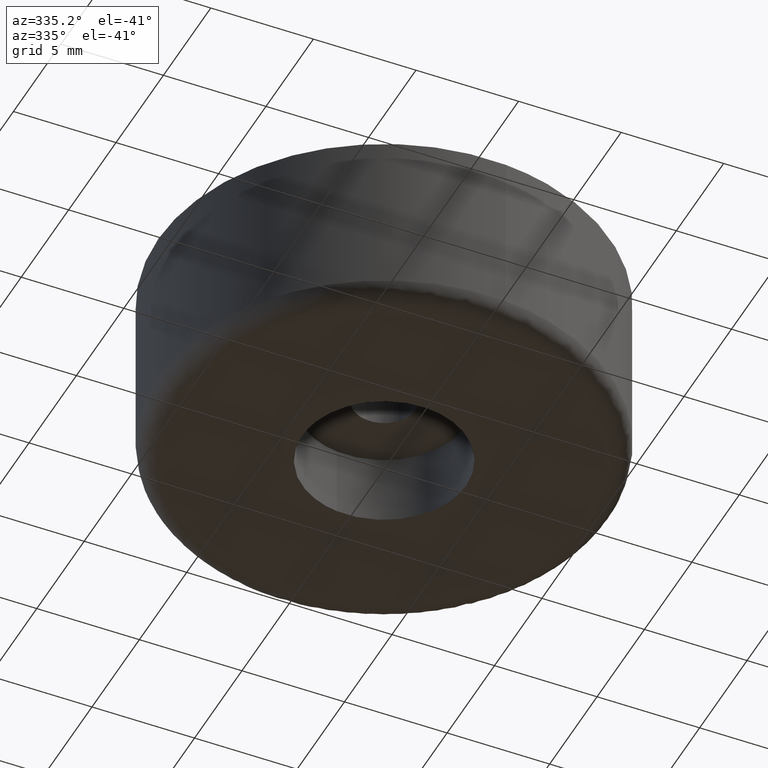
[diagram: clean part render]
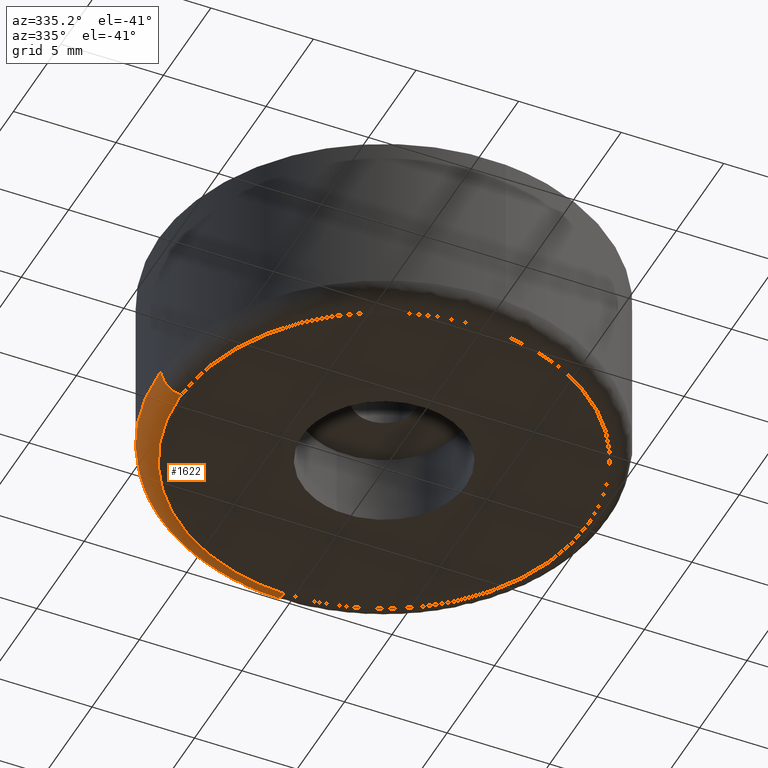
[diagram: same view with one face highlighted and labeled with its STEP entity id]
A machine part, auxiliary view. The second image highlights one B-rep face of the part: STEP entity #1622.
In plain terms, the highlighted face is a freeform B-spline surface patch.
Its self-contained STEP definition (entity closure, byte-faithful):
#793=CARTESIAN_POINT('',(-0.276431049877462,10.996526082116279,0.999999999897399));
#794=VERTEX_POINT('',#793);
#810=CARTESIAN_POINT('',(-11.0,0.0,1.0));
#811=VERTEX_POINT('',#810);
#812=CARTESIAN_POINT('',(-11.0,0.0,1.0));
#813=CARTESIAN_POINT('',(-11.0,10.726956637985680,1.0));
#814=CARTESIAN_POINT('',(-0.276431049877462,10.996526082116279,0.999999999897399));
#822=(BOUNDED_CURVE()B_SPLINE_CURVE(2,(#812,#813,#814),.UNSPECIFIED.,.F.,.U.)B_SPLINE_CURVE_WITH_KNOTS((3,3),(0.0,0.245579891769784),.UNSPECIFIED.)CURVE()GEOMETRIC_REPRESENTATION_ITEM()RATIONAL_B_SPLINE_CURVE((1.0,0.712285260094755,0.989826157681522))REPRESENTATION_ITEM(''));
#823=EDGE_CURVE('',#811,#794,#822,.T.);
#825=CARTESIAN_POINT('',(-10.996526082116279,-0.276431049877210,0.999999999897420));
#826=VERTEX_POINT('',#825);
#827=CARTESIAN_POINT('',(-10.996526082116281,-0.276431049877210,0.999999999897420));
#828=CARTESIAN_POINT('',(-11.0,-0.138237353357674,1.0));
#829=CARTESIAN_POINT('',(-11.0,0.0,1.0));
#837=(BOUNDED_CURVE()B_SPLINE_CURVE(2,(#827,#828,#829),.UNSPECIFIED.,.F.,.U.)B_SPLINE_CURVE_WITH_KNOTS((3,3),(0.995579891769792,1.0),.UNSPECIFIED.)CURVE()GEOMETRIC_REPRESENTATION_ITEM()RATIONAL_B_SPLINE_CURVE((0.989826157681540,0.994821521091802,1.0))REPRESENTATION_ITEM(''));
#838=EDGE_CURVE('',#826,#811,#837,.T.);
#1502=CARTESIAN_POINT('',(-0.251300954478001,9.996841893394862,1.718108E-016));
#1503=VERTEX_POINT('',#1502);
#1521=CARTESIAN_POINT('',(-0.276431049877462,10.996526082116279,0.999999999897399));
#1522=CARTESIAN_POINT('',(-0.276431049871556,10.996526081911156,1.125614E-009));
#1523=CARTESIAN_POINT('',(-0.251300954478001,9.996841893394862,1.718108E-016));
#1531=(BOUNDED_CURVE()B_SPLINE_CURVE(2,(#1521,#1522,#1523),.UNSPECIFIED.,.F.,.U.)B_SPLINE_CURVE_WITH_KNOTS((3,3),(-1.723441281773494,-0.263586880092799),.UNSPECIFIED.)CURVE()GEOMETRIC_REPRESENTATION_ITEM()RATIONAL_B_SPLINE_CURVE((0.883897567064202,0.626638727480732,0.888510408644601))REPRESENTATION_ITEM(''));
#1532=EDGE_CURVE('',#794,#1503,#1531,.T.);
#1538=CARTESIAN_POINT('',(-9.996841893421046,-0.251300954480380,1.874299E-016));
#1539=VERTEX_POINT('',#1538);
#1540=CARTESIAN_POINT('',(-10.996526082116283,-0.276431049877210,0.999999999897420));
#1541=CARTESIAN_POINT('',(-10.996526081911201,-0.276431049871555,1.178090E-009));
#1542=CARTESIAN_POINT('',(-9.996841893421046,-0.251300954480380,1.874299E-016));
#1550=(BOUNDED_CURVE()B_SPLINE_CURVE(2,(#1540,#1541,#1542),.UNSPECIFIED.,.F.,.U.)B_SPLINE_CURVE_WITH_KNOTS((3,3),(-1.723441281773539,-0.263586880147109),.UNSPECIFIED.)CURVE()GEOMETRIC_REPRESENTATION_ITEM()RATIONAL_B_SPLINE_CURVE((0.883897567064218,0.626638727490295,0.888510408625117))REPRESENTATION_ITEM(''));
#1551=EDGE_CURVE('',#826,#1539,#1550,.T.);
#1571=CARTESIAN_POINT('',(-10.994093156753253,-0.276369890915476,1.069724206937739));
#1572=CARTESIAN_POINT('',(-11.270463047668732,10.717723265837783,1.069724206937739));
#1573=CARTESIAN_POINT('',(-0.276369890915477,10.994093156753253,1.069724206937739));
#1574=CARTESIAN_POINT('',(-11.074240832848719,-0.278384645946547,-0.077336226805050));
#1575=CARTESIAN_POINT('',(-11.352625478795270,10.795856186902176,-0.077336226805050));
#1576=CARTESIAN_POINT('',(-0.278384645946548,11.074240832848719,-0.077336226805050));
#1577=CARTESIAN_POINT('',(-9.927512752450511,-0.249558156124175,0.002407681992349));
#1578=CARTESIAN_POINT('',(-10.177070908574683,9.677954596326334,0.002407681992349));
#1579=CARTESIAN_POINT('',(-0.249558156124175,9.927512752450511,0.002407681992349));
#1587=(BOUNDED_SURFACE()B_SPLINE_SURFACE(2,2,((#1571,#1574,#1577),(#1572,#1575,#1578),(#1573,#1576,#1579)),.UNSPECIFIED.,.F.,.F.,.U.)B_SPLINE_SURFACE_WITH_KNOTS((3,3),(3,3),(0.0,18.221364468253700),(0.0,1.822370918624830),.UNSPECIFIED.)GEOMETRIC_REPRESENTATION_ITEM()RATIONAL_B_SPLINE_SURFACE(((0.910892950627466,0.599412832290527,0.915966818727494),(0.644098582323704,0.423848878442866,0.647686348864080),(0.910892950627466,0.599412832290527,0.915966818727494)))REPRESENTATION_ITEM('')SURFACE());
#1588=CARTESIAN_POINT('',(-10.0,0.0,0.0));
#1589=VERTEX_POINT('',#1588);
#1590=CARTESIAN_POINT('',(-10.0,0.0,0.0));
#1591=CARTESIAN_POINT('',(-10.0,9.751778761746998,0.0));
#1592=CARTESIAN_POINT('',(-0.251300954478001,9.996841893394862,1.718108E-016));
#1600=(BOUNDED_CURVE()B_SPLINE_CURVE(2,(#1590,#1591,#1592),.UNSPECIFIED.,.F.,.U.)B_SPLINE_CURVE_WITH_KNOTS((3,3),(0.0,0.245579891768740),.UNSPECIFIED.)CURVE()GEOMETRIC_REPRESENTATION_ITEM()RATIONAL_B_SPLINE_CURVE((1.0,0.712285260095977,0.989826157679164))REPRESENTATION_ITEM(''));
#1601=EDGE_CURVE('',#1589,#1503,#1600,.T.);
#1602=ORIENTED_EDGE('',*,*,#1601,.F.);
#1603=CARTESIAN_POINT('',(-9.996841893421046,-0.251300954480380,1.874299E-016));
#1604=CARTESIAN_POINT('',(-9.999999999999998,-0.125670321266014,0.0));
#1605=CARTESIAN_POINT('',(-10.0,0.0,0.0));
#1613=(BOUNDED_CURVE()B_SPLINE_CURVE(2,(#1603,#1604,#1605),.UNSPECIFIED.,.F.,.U.)B_SPLINE_CURVE_WITH_KNOTS((3,3),(0.995579891768680,1.0),.UNSPECIFIED.)CURVE()GEOMETRIC_REPRESENTATION_ITEM()RATIONAL_B_SPLINE_CURVE((0.989826157679028,0.994821521090500,1.0))REPRESENTATION_ITEM(''));
#1614=EDGE_CURVE('',#1539,#1589,#1613,.T.);
#1615=ORIENTED_EDGE('',*,*,#1614,.F.);
#1616=ORIENTED_EDGE('',*,*,#1551,.F.);
#1617=ORIENTED_EDGE('',*,*,#838,.T.);
#1618=ORIENTED_EDGE('',*,*,#823,.T.);
#1619=ORIENTED_EDGE('',*,*,#1532,.T.);
#1620=EDGE_LOOP('',(#1602,#1615,#1616,#1617,#1618,#1619));
#1621=FACE_OUTER_BOUND('',#1620,.T.);
#1622=ADVANCED_FACE('',(#1621),#1587,.T.);